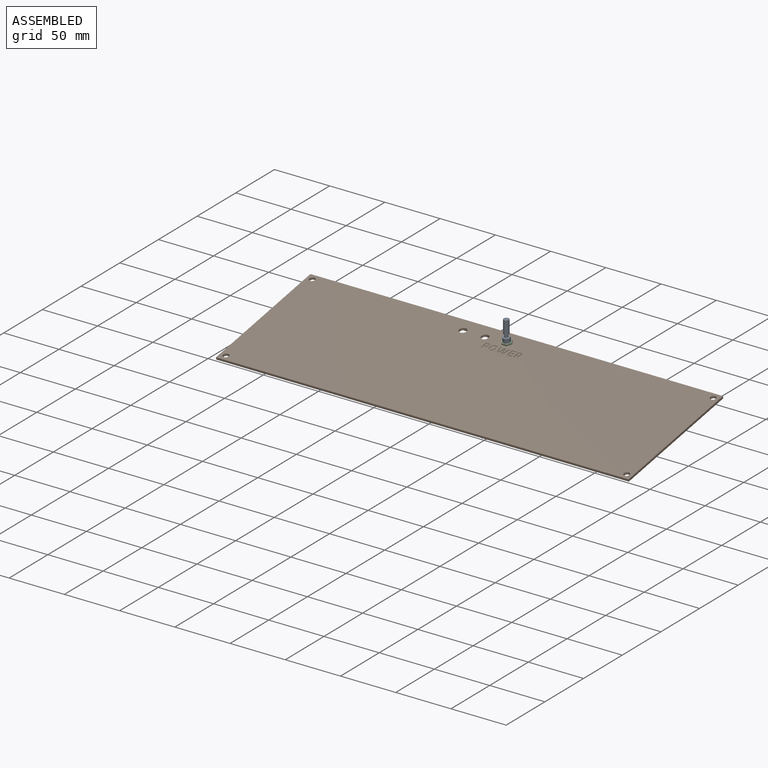
[diagram: assembled view]
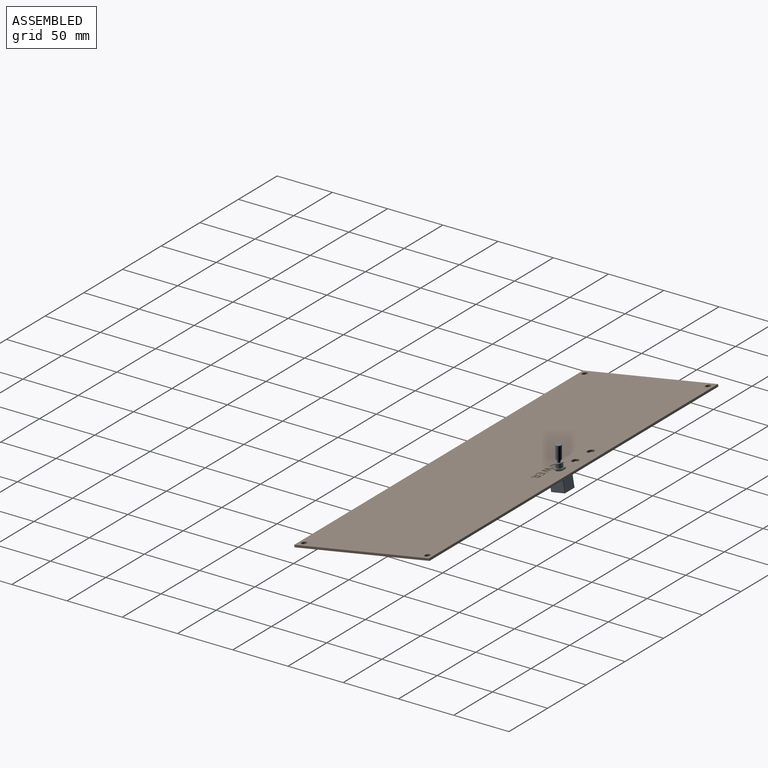
[diagram: assembled view, second angle]
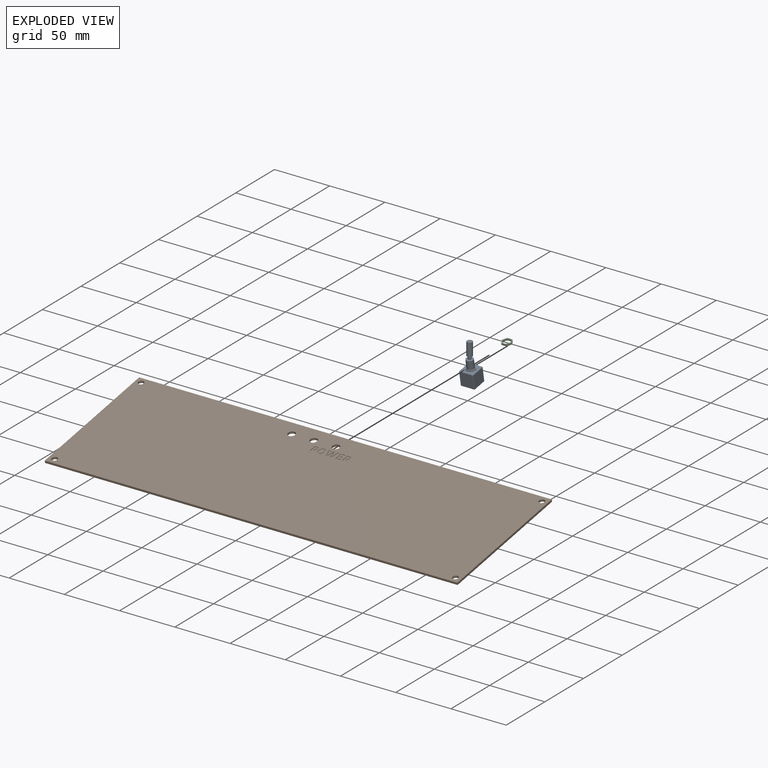
[diagram: exploded view]
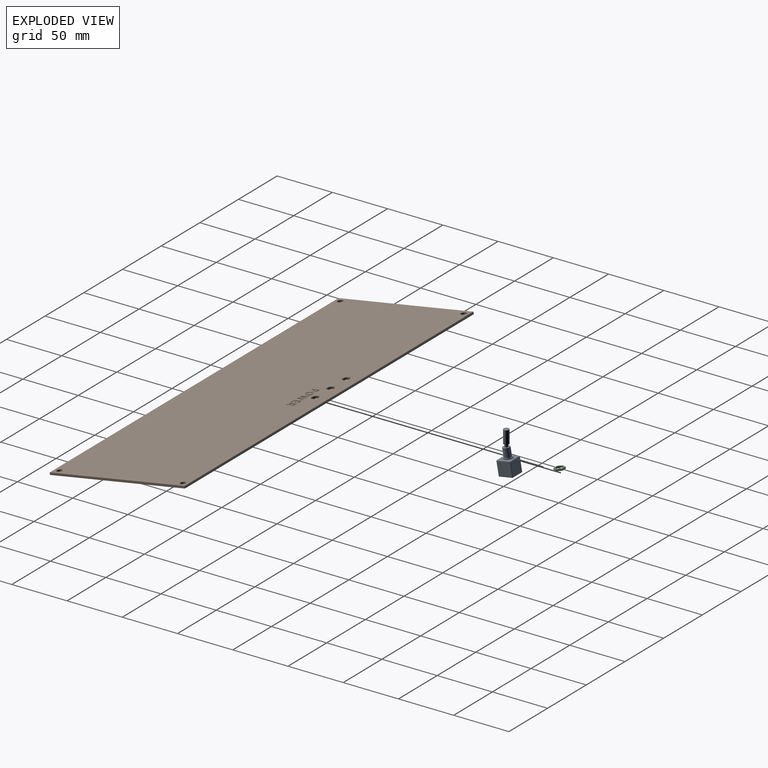
[diagram: exploded view, second angle]
ASSEMBLY  parts=3 mates=2
PART A: 35 faces, bbox 12.7x13x36.8 mm
  f0: cylinder r=1.5mm len=3.47mm, axis (0,-0.17,-0.98), area 25.4mm2, adj f1,f34
  f1: plane 5x4.92mm, normal (0,-0.17,-0.98), area 12.6mm2, adj f0,f2
  f2: cylinder r=2.5mm len=12.4mm, axis (0,-0.17,-0.98), area 184mm2, adj f1,f4
  f3: plane 4x3.94mm, normal (0,0.17,0.98), area 12.6mm2, adj f4
  f4: cone r=2mm half-angle=60deg, axis (0,-0.17,-0.98), area 8.2mm2, adj f2,f3
  f5: plane 12.05x11.7mm, normal (0,-1,0), area 141mm2, adj f19,f24,f27,f30
  f6: plane 12.05x12mm, normal (1,0,0), area 144.6mm2, adj f16,f25,f26,f30
  f7: plane 12.05x11.7mm, normal (0,1,0), area 141mm2, adj f11,f15,f16,f17
  f8: plane 12.05x12mm, normal (-1,0,0), area 144.6mm2, adj f11,f14,f18,f19
  f9: plane 12x11.7mm, normal (0,0,1), area 90.1mm2, adj f14,f15,f24,f25,f31
  f10: plane 12x11.7mm, normal (0,0,-1), area 140.4mm2, adj f17,f18,f26,f27
  f11: cylinder r=0.5mm len=12.05mm, axis (0,0,1), area 9.5mm2, adj f7,f8,f12,f13
  f12: sphere r=0.5mm, area 0.4mm2, adj f11,f14,f15
  f13: sphere r=0.5mm, area 0.4mm2, adj f11,f17,f18
  f14: cylinder r=0.5mm len=12mm, axis (0,1,0), area 9.4mm2, adj f8,f9,f12,f20
  f15: cylinder r=0.5mm len=11.7mm, axis (1,0,0), area 9.2mm2, adj f7,f9,f12,f21
  f16: cylinder r=0.5mm len=12.05mm, axis (0,0,-1), area 9.5mm2, adj f6,f7,f21,f22
  f17: cylinder r=0.5mm len=11.7mm, axis (-1,0,0), area 9.2mm2, adj f7,f10,f13,f22
  f18: cylinder r=0.5mm len=12mm, axis (0,-1,0), area 9.4mm2, adj f8,f10,f13,f23
  f19: cylinder r=0.5mm len=12.05mm, axis (0,0,-1), area 9.5mm2, adj f5,f8,f20,f23
  f20: sphere r=0.5mm, area 0.4mm2, adj f14,f19,f24
  f21: sphere r=0.5mm, area 0.4mm2, adj f15,f16,f25
  f22: sphere r=0.5mm, area 0.4mm2, adj f16,f17,f26
  f23: sphere r=0.5mm, area 0.4mm2, adj f18,f19,f27
  f24: cylinder r=0.5mm len=11.7mm, axis (-1,0,0), area 9.2mm2, adj f5,f9,f20,f28
  f25: cylinder r=0.5mm len=12mm, axis (0,-1,0), area 9.4mm2, adj f6,f9,f21,f28
  f26: cylinder r=0.5mm len=12mm, axis (0,1,0), area 9.4mm2, adj f6,f10,f22,f29
  f27: cylinder r=0.5mm len=11.7mm, axis (1,0,0), area 9.2mm2, adj f5,f10,f23,f29
  f28: sphere r=0.5mm, area 0.4mm2, adj f24,f25,f30
  f29: sphere r=0.5mm, area 0.4mm2, adj f26,f27,f30
  f30: cylinder r=0.5mm len=12.05mm, axis (0,0,1), area 9.5mm2, adj f5,f6,f28,f29
  f31: cylinder r=4mm len=8mm, axis (0,0,-1), area 22.6mm2, adj f9,f32
  f32: plane 8x8mm, normal (0,0,1), area 18.6mm2, adj f31,f33
  f33: cylinder r=3.17mm len=8mm, axis (0,0,-1), area 159.6mm2, adj f32,f34
  f34: plane 6.35x6.35mm, normal (0,0,1), area 24.5mm2, adj f0,f33
PART B: 149 faces, bbox 373.5x124x2 mm
  f0: plane 373.5x124mm, normal (0,0,1), area 46043.3mm2, adj f1,f2,f3,f4,f5,f6,f7,f8
  f1: plane 124x2mm, normal (1,0,0), area 248mm2, adj f0,f2,f8,f9
  f2: plane 373.5x2mm, normal (0,1,0), area 747mm2, adj f0,f1,f3,f9
  f3: plane 124x2mm, normal (-1,0,0), area 248mm2, adj f0,f2,f8,f9
  f4: cylinder r=2.5mm len=5mm, axis (0,0,-1), area 31.4mm2, adj f0,f9
  f5: cylinder r=2.5mm len=5mm, axis (0,0,-1), area 31.4mm2, adj f0,f9
  f6: cylinder r=2.5mm len=5mm, axis (0,0,-1), area 31.4mm2, adj f0,f9
  f7: cylinder r=2.5mm len=5mm, axis (0,0,-1), area 31.4mm2, adj f0,f9
  f8: plane 373.5x2mm, normal (0,-1,0), area 747mm2, adj f0,f1,f3,f9
  f9: plane 373.5x124mm, normal (0,0,-1), area 46135.9mm2, adj f1,f2,f3,f4,f5,f6,f7,f8
  f10: cylinder r=3.25mm len=6.5mm, axis (0,0,1), area 40.8mm2, adj f0,f9
  f11: cylinder r=3.25mm len=6.5mm, axis (0,0,1), area 40.8mm2, adj f0,f9
  f12: cylinder r=3.25mm len=6.5mm, axis (0,0,1), area 40.8mm2, adj f0,f9
  f13: plane 0.5x0.48mm, normal (0,-1,0), area 0.2mm2, adj f0,f14,f34,f35
  f14: plane 0.86x0.5mm, normal (1,0,0), area 0.4mm2, adj f0,f13,f15,f35
  f15: plane 0.5x0.47mm, normal (0,1,0), area 0.2mm2, adj f0,f14,f16,f35
  f16: extruded ~0.7x0.5mm, area 0.4mm2, adj f0,f15,f17,f35
  f17: extruded ~0.5x0.41mm, area 0.3mm2, adj f0,f16,f18,f35
  f18: extruded ~0.5x0.43mm, area 0.2mm2, adj f0,f17,f19,f35
  f19: extruded ~0.5x0.4mm, area 0.2mm2, adj f0,f18,f20,f35
  f20: extruded ~0.72x0.5mm, area 0.4mm2, adj f0,f19,f21,f35
  f21: extruded ~0.5x0.45mm, area 0.3mm2, adj f0,f20,f22,f35
  f22: extruded ~0.5x0.38mm, area 0.2mm2, adj f0,f21,f23,f35
  f23: extruded ~0.5x0.41mm, area 0.2mm2, adj f0,f22,f24,f35
  f24: plane 0.65x0.5mm, normal (0,-1,0), area 0.3mm2, adj f0,f23,f25,f35
  f25: plane 0.84x0.5mm, normal (1,0,0), area 0.4mm2, adj f0,f24,f26,f35
  f26: plane 0.5x0.46mm, normal (0,1,0), area 0.2mm2, adj f0,f25,f27,f35
  f27: extruded ~1.01x0.5mm, area 0.5mm2, adj f0,f26,f28,f35
  f28: extruded ~0.78x0.5mm, area 0.5mm2, adj f0,f27,f29,f35
  f29: extruded ~0.73x0.5mm, area 0.4mm2, adj f0,f28,f30,f35
  f30: extruded ~0.96x0.5mm, area 0.5mm2, adj f0,f29,f31,f35
  f31: extruded ~0.91x0.5mm, area 0.5mm2, adj f0,f30,f32,f35
  f32: extruded ~0.69x0.56mm, area 0.4mm2, adj f0,f31,f33,f35
  f33: extruded ~0.78x0.5mm, area 0.4mm2, adj f0,f32,f34,f35
  f34: extruded ~0.88x0.5mm, area 0.4mm2, adj f0,f13,f33,f35
  f35: plane 4.47x2.92mm, normal (0,0,1), area 6.5mm2, adj f13,f14,f15,f16,f17,f18,f19,f20
  f36: extruded ~1.5x0.5mm, area 0.8mm2, adj f0,f37,f53,f54
  f37: extruded ~1.11x0.57mm, area 0.6mm2, adj f0,f36,f38,f54
  f38: extruded ~0.87x0.69mm, area 0.6mm2, adj f0,f37,f39,f54
  f39: extruded ~1.08x0.5mm, area 0.6mm2, adj f0,f38,f40,f54
  f40: plane 0.94x0.5mm, normal (-1,0,0), area 0.5mm2, adj f0,f39,f41,f54
  f41: extruded ~0.6x0.5mm, area 0.3mm2, adj f0,f40,f42,f54
  f42: extruded ~0.5x0.5mm, area 0.4mm2, adj f0,f41,f43,f54
  f43: extruded ~0.8x0.5mm, area 0.4mm2, adj f0,f42,f44,f54
  f44: extruded ~1.15x0.5mm, area 0.6mm2, adj f0,f43,f45,f54
  f45: extruded ~1.15x0.5mm, area 0.6mm2, adj f0,f44,f46,f54
  f46: extruded ~0.8x0.5mm, area 0.4mm2, adj f0,f45,f47,f54
  f47: extruded ~0.5x0.49mm, area 0.3mm2, adj f0,f46,f48,f54
  f48: extruded ~0.61x0.5mm, area 0.3mm2, adj f0,f47,f49,f54
  f49: plane 0.95x0.5mm, normal (-1,0,0), area 0.5mm2, adj f0,f48,f50,f54
  f50: extruded ~1.09x0.5mm, area 0.6mm2, adj f0,f49,f51,f54
  f51: extruded ~0.86x0.69mm, area 0.6mm2, adj f0,f50,f52,f54
  f52: extruded ~1.1x0.57mm, area 0.6mm2, adj f0,f51,f53,f54
  f53: extruded ~1.5x0.5mm, area 0.8mm2, adj f0,f36,f52,f54
  f54: plane 7.15x2.73mm, normal (0,0,1), area 9mm2, adj f36,f37,f38,f39,f40,f41,f42,f43
  f55: plane 0.94x0.5mm, normal (1,0,0), area 0.5mm2, adj f0,f56,f72,f73
  f56: extruded ~0.6x0.5mm, area 0.3mm2, adj f0,f55,f57,f73
  f57: extruded ~0.5x0.5mm, area 0.4mm2, adj f0,f56,f58,f73
  f58: extruded ~0.8x0.5mm, area 0.4mm2, adj f0,f57,f59,f73
  f59: extruded ~1.15x0.5mm, area 0.6mm2, adj f0,f58,f60,f73
  f60: extruded ~1.15x0.5mm, area 0.6mm2, adj f0,f59,f61,f73
  f61: extruded ~0.8x0.5mm, area 0.4mm2, adj f0,f60,f62,f73
  f62: extruded ~0.5x0.49mm, area 0.3mm2, adj f0,f61,f63,f73
  f63: extruded ~0.61x0.5mm, area 0.3mm2, adj f0,f62,f64,f73
  f64: plane 0.94x0.5mm, normal (1,0,0), area 0.5mm2, adj f0,f63,f65,f73
  f65: extruded ~1.08x0.5mm, area 0.6mm2, adj f0,f64,f66,f73
  f66: extruded ~0.86x0.69mm, area 0.6mm2, adj f0,f65,f67,f73
  f67: extruded ~1.11x0.57mm, area 0.6mm2, adj f0,f66,f68,f73
  f68: extruded ~1.5x0.5mm, area 0.8mm2, adj f0,f67,f69,f73
  f69: extruded ~1.5x0.5mm, area 0.8mm2, adj f0,f68,f70,f73
  f70: extruded ~1.1x0.57mm, area 0.6mm2, adj f0,f69,f71,f73
  f71: extruded ~0.86x0.7mm, area 0.6mm2, adj f0,f70,f72,f73
  f72: extruded ~1.08x0.5mm, area 0.6mm2, adj f0,f55,f71,f73
  f73: plane 7.15x2.73mm, normal (0,0,1), area 9mm2, adj f55,f56,f57,f58,f59,f60,f61,f62
  f74: plane 6.04x1.24mm, normal (-0.98,-0.2,0), area 3.1mm2, adj f0,f75,f81,f82
  f75: plane 1.29x0.5mm, normal (0,-1,0), area 0.6mm2, adj f0,f74,f76,f82
  f76: plane 7.04x1.78mm, normal (0.97,0.24,0), area 3.6mm2, adj f0,f75,f77,f82
  f77: plane 1.49x0.5mm, normal (0,1,0), area 0.7mm2, adj f0,f76,f78,f82
  f78: plane 4.5x1.04mm, normal (-0.97,0.22,0), area 2.3mm2, adj f0,f77,f79,f82
  f79: plane 2.53x0.5mm, normal (-1,0,0), area 1.3mm2, adj f0,f78,f80,f82
  f80: plane 0.5x0.45mm, normal (0,-1,0), area 0.2mm2, adj f0,f79,f81,f82
  f81: plane 6.04x1.33mm, normal (0.98,-0.21,0), area 3.1mm2, adj f0,f74,f80,f82
  f82: plane 7.04x4.3mm, normal (0,0,1), area 13.9mm2, adj f74,f75,f76,f77,f78,f79,f80,f81
  f83: plane 6.04x1.34mm, normal (0.98,-0.22,0), area 3.1mm2, adj f0,f84,f90,f91
  f84: plane 6.04x1.23mm, normal (-0.98,-0.2,0), area 3.1mm2, adj f0,f83,f85,f91
  f85: plane 0.5x0.46mm, normal (0,-1,0), area 0.2mm2, adj f0,f84,f86,f91
  f86: plane 2.71x0.5mm, normal (1,0,0), area 1.4mm2, adj f0,f85,f87,f91
  f87: plane 4.32x0.95mm, normal (0.98,0.21,0), area 2.2mm2, adj f0,f86,f88,f91
  f88: plane 1.48x0.5mm, normal (0,1,0), area 0.7mm2, adj f0,f87,f89,f91
  f89: plane 7.04x1.89mm, normal (-0.97,0.26,0), area 3.6mm2, adj f0,f88,f90,f91
  f90: plane 1.29x0.5mm, normal (0,-1,0), area 0.6mm2, adj f0,f83,f89,f91
  f91: plane 7.04x4.32mm, normal (0,0,1), area 13.9mm2, adj f83,f84,f85,f86,f87,f88,f89,f90
  f92: plane 7x0.5mm, normal (1,0,0), area 3.5mm2, adj f0,f93,f95,f96
  f93: plane 1.16x0.5mm, normal (0,1,0), area 0.6mm2, adj f0,f92,f94,f96
  f94: plane 7x0.5mm, normal (-1,0,0), area 3.5mm2, adj f0,f93,f95,f96
  f95: plane 1.16x0.5mm, normal (0,-1,0), area 0.6mm2, adj f0,f92,f94,f96
  f96: plane 7x1.16mm, normal (0,0,1), area 8.1mm2, adj f92,f93,f94,f95
  f97: plane 0.78x0.5mm, normal (-1,0,0), area 0.4mm2, adj f0,f98,f100,f101
  f98: plane 2.53x0.5mm, normal (0,-1,0), area 1.3mm2, adj f0,f97,f99,f101
  f99: plane 0.78x0.5mm, normal (1,0,0), area 0.4mm2, adj f0,f98,f100,f101
  f100: plane 2.53x0.5mm, normal (0,1,0), area 1.3mm2, adj f0,f97,f99,f101
  f101: plane 2.53x0.78mm, normal (0,0,1), area 2mm2, adj f97,f98,f99,f100
  f102: plane 0.86x0.5mm, normal (1,0,0), area 0.4mm2, adj f0,f103,f105,f106
  f103: plane 2.83x0.5mm, normal (0,1,0), area 1.4mm2, adj f0,f102,f104,f106
  f104: plane 0.86x0.5mm, normal (-1,0,0), area 0.4mm2, adj f0,f103,f105,f106
  f105: plane 2.83x0.5mm, normal (0,-1,0), area 1.4mm2, adj f0,f102,f104,f106
  f106: plane 2.83x0.86mm, normal (0,0,1), area 2.4mm2, adj f102,f103,f104,f105
  f107: plane 2.83x0.5mm, normal (0,-1,0), area 1.4mm2, adj f0,f108,f110,f111
  f108: plane 0.86x0.5mm, normal (1,0,0), area 0.4mm2, adj f0,f107,f109,f111
  f109: plane 2.83x0.5mm, normal (0,1,0), area 1.4mm2, adj f0,f108,f110,f111
  f110: plane 0.86x0.5mm, normal (-1,0,0), area 0.4mm2, adj f0,f107,f109,f111
  f111: plane 2.83x0.86mm, normal (0,0,1), area 2.4mm2, adj f107,f108,f109,f110
  f112: plane 7x0.5mm, normal (1,0,0), area 3.5mm2, adj f0,f113,f115,f116
  f113: plane 1.14x0.5mm, normal (0,1,0), area 0.6mm2, adj f0,f112,f114,f116
  f114: plane 7x0.5mm, normal (-1,0,0), area 3.5mm2, adj f0,f113,f115,f116
  f115: plane 1.14x0.5mm, normal (0,-1,0), area 0.6mm2, adj f0,f112,f114,f116
  f116: plane 7x1.14mm, normal (0,0,1), area 8mm2, adj f112,f113,f114,f115
  f117: plane 2.75x1.6mm, normal (-0.87,-0.5,0), area 1.6mm2, adj f0,f118,f142,f143
  f118: extruded ~0.95x0.79mm, area 0.6mm2, adj f0,f117,f119,f143
  f119: extruded ~1.29x0.5mm, area 0.7mm2, adj f0,f118,f120,f143
  f120: extruded ~0.91x0.5mm, area 0.5mm2, adj f0,f119,f121,f143
  f121: extruded ~0.69x0.56mm, area 0.4mm2, adj f0,f120,f122,f143
  f122: extruded ~0.78x0.5mm, area 0.4mm2, adj f0,f121,f123,f143
  f123: extruded ~0.88x0.5mm, area 0.4mm2, adj f0,f122,f124,f143
  f124: plane 0.5x0.48mm, normal (0,-1,0), area 0.2mm2, adj f0,f123,f125,f143
  f125: plane 0.86x0.5mm, normal (1,0,0), area 0.4mm2, adj f0,f124,f126,f143
  f126: plane 0.5x0.47mm, normal (0,1,0), area 0.2mm2, adj f0,f125,f127,f143
  f127: extruded ~0.7x0.5mm, area 0.4mm2, adj f0,f126,f128,f143
  f128: extruded ~0.5x0.41mm, area 0.3mm2, adj f0,f127,f129,f143
  f129: extruded ~0.5x0.43mm, area 0.2mm2, adj f0,f128,f130,f143
  f130: extruded ~0.5x0.4mm, area 0.2mm2, adj f0,f129,f131,f143
  f131: extruded ~0.72x0.5mm, area 0.4mm2, adj f0,f130,f132,f143
  f132: extruded ~0.5x0.45mm, area 0.3mm2, adj f0,f131,f133,f143
  f133: extruded ~0.5x0.38mm, area 0.2mm2, adj f0,f132,f134,f143
  f134: extruded ~0.5x0.42mm, area 0.2mm2, adj f0,f133,f135,f143
  f135: plane 0.65x0.5mm, normal (0,-1,0), area 0.3mm2, adj f0,f134,f136,f143
  f136: plane 0.84x0.5mm, normal (1,0,0), area 0.4mm2, adj f0,f135,f137,f143
  f137: plane 0.5x0.34mm, normal (0,1,0), area 0.2mm2, adj f0,f136,f138,f143
  f138: plane 0.5x0.2mm, normal (0,1,0), area 0.1mm2, adj f0,f137,f139,f143
  f139: extruded ~0.5x0.1mm, area 0mm2, adj f0,f138,f140,f143
  f140: extruded ~0.5x0.06mm, area 0mm2, adj f0,f139,f141,f143
  f141: plane 2.54x1.32mm, normal (0.89,0.46,0), area 1.4mm2, adj f0,f140,f142,f143
  f142: plane 1.21x0.5mm, normal (0,1,0), area 0.6mm2, adj f0,f117,f141,f143
  f143: plane 7x3.22mm, normal (0,0,1), area 9.4mm2, adj f117,f118,f119,f120,f121,f122,f123,f124
  f144: plane 7x0.5mm, normal (1,0,0), area 3.5mm2, adj f0,f145,f147,f148
  f145: plane 1.14x0.5mm, normal (0,1,0), area 0.6mm2, adj f0,f144,f146,f148
  f146: plane 7x0.5mm, normal (-1,0,0), area 3.5mm2, adj f0,f145,f147,f148
  f147: plane 1.14x0.5mm, normal (0,-1,0), area 0.6mm2, adj f0,f144,f146,f148
  f148: plane 7x1.14mm, normal (0,0,1), area 8mm2, adj f144,f145,f146,f147
PART C: 9 faces, bbox 9.2x8x1.5 mm
  f0: plane 4x2.31mm, normal (0.87,0.5,0), area 6.9mm2, adj f1,f5,f7,f8
  f1: plane 4.62x1.5mm, normal (0,1,0), area 6.9mm2, adj f0,f2,f7,f8
  f2: plane 4x2.31mm, normal (-0.87,0.5,0), area 6.9mm2, adj f1,f3,f7,f8
  f3: plane 4x2.31mm, normal (-0.87,-0.5,0), area 6.9mm2, adj f2,f4,f7,f8
  f4: plane 4.62x1.5mm, normal (0,-1,0), area 6.9mm2, adj f3,f5,f7,f8
  f5: plane 4x2.31mm, normal (0.87,-0.5,0), area 6.9mm2, adj f0,f4,f7,f8
  f6: cylinder r=3.17mm len=6.35mm, axis (0,0,-1), area 29.9mm2, adj f7,f8
  f7: plane 9.24x8mm, normal (0,0,1), area 23.8mm2, adj f0,f1,f2,f3,f4,f5,f6
  f8: plane 9.24x8mm, normal (0,0,-1), area 23.8mm2, adj f0,f1,f2,f3,f4,f5,f6
PLACE A rot(axis=(1,0,0),10deg) t=(0,3.81,2.33)mm
PLACE B rot(axis=(1,0,0),10deg) t=(0,-47.26,7.49)mm
PLACE C rot(axis=(1,0,0),10deg) t=(0,0.96,18.53)mm
MATE slider A.f33 <-> B.f12  axis (0,-0.17,0.98) through (0,1.39,16.07)mm
MATE slider C.f6 <-> A.f33  axis (0,-0.17,0.98) through (0,0.69,20.01)mm
